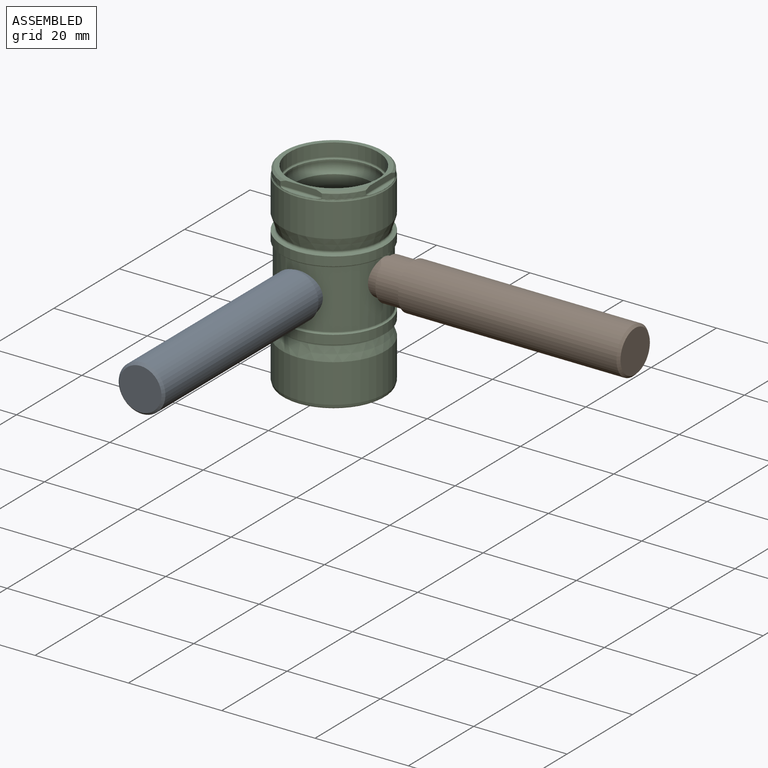
[diagram: assembled view]
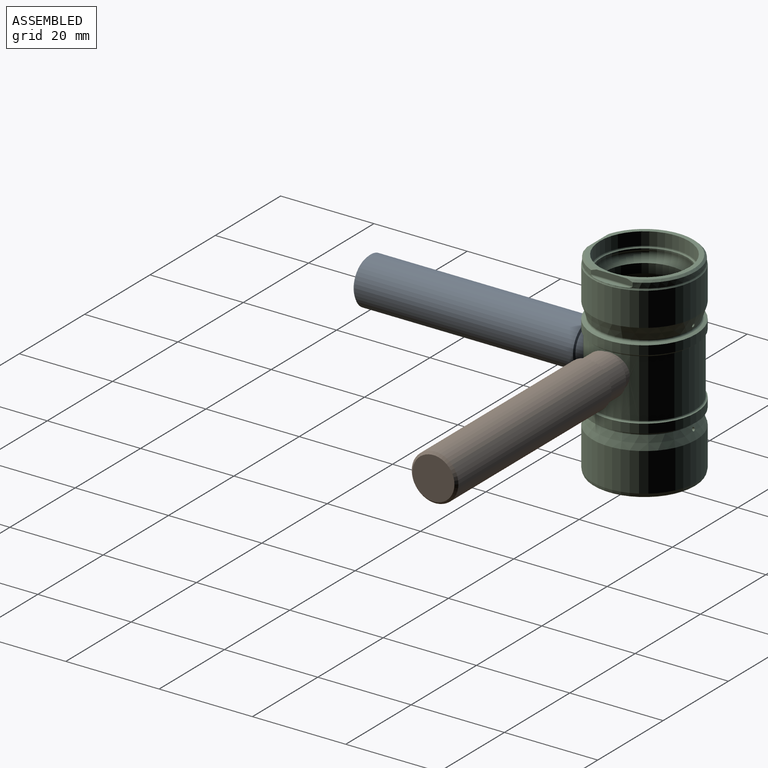
[diagram: assembled view, second angle]
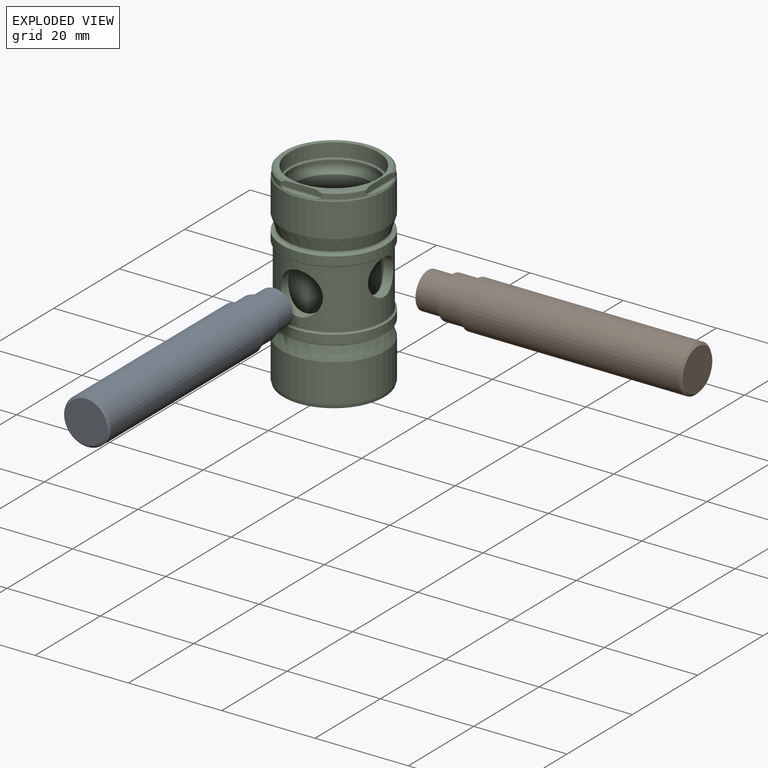
[diagram: exploded view]
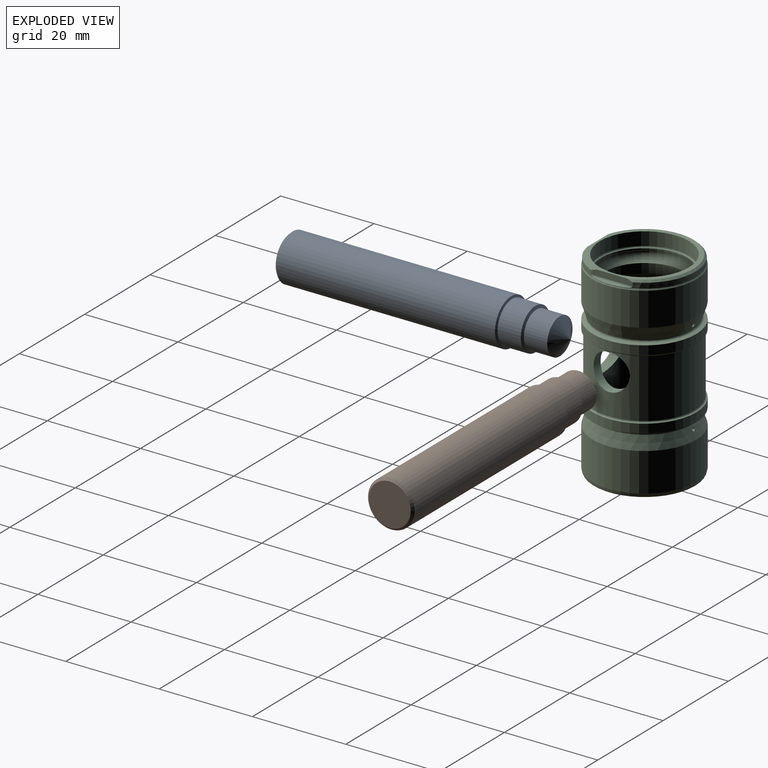
[diagram: exploded view, second angle]
ASSEMBLY  parts=3 mates=2
PART A: 8 faces, bbox 10x60x10 mm
  f0: plane 9x9mm, normal (0,-1,0), area 63.6mm2, adj f7
  f1: cone r=3.88mm half-angle=60deg, axis (0,-1,0), area 54.5mm2, adj f2
  f2: cylinder r=3.88mm len=7.75mm, axis (0,1,0), area 121.7mm2, adj f1,f3
  f3: cone r=4.5mm half-angle=70deg, axis (0,-1,0), area 17.5mm2, adj f2,f4
  f4: cylinder r=4.5mm len=9mm, axis (0,1,0), area 141.4mm2, adj f3,f5
  f5: cone r=5mm half-angle=70deg, axis (0,-1,0), area 15.9mm2, adj f4,f6
  f6: cylinder r=5mm len=46.85mm, axis (0,1,0), area 1471.9mm2, adj f5,f7
  f7: cone r=4.5mm half-angle=45deg, axis (0,1,0), area 21.1mm2, adj f0,f6
PART B: same geometry as A
PART C: 92 faces, bbox 24.1x24.1x42.1 mm
  f0: torus R=7.31mm, axis (0,0,1), area 71.3mm2, adj f1,f4,f8
  f1: cylinder r=9.3mm len=18.6mm, axis (0,0,1), area 8.7mm2, adj f0,f5,f87
  f2: cylinder r=9.3mm len=18.6mm, axis (0,0,1), area 8.7mm2, adj f3,f6,f84
  f3: torus R=7.31mm, axis (0,0,1), area 71.3mm2, adj f2,f7,f9
  f4: torus R=7.31mm, axis (0,0,1), area 71.3mm2, adj f0,f5,f10
  f5: cylinder r=9.3mm len=18.6mm, axis (0,0,1), area 8.7mm2, adj f1,f4,f91
  f6: cylinder r=9.3mm len=18.6mm, axis (0,0,1), area 8.7mm2, adj f2,f7,f88
  f7: torus R=7.31mm, axis (0,0,1), area 71.3mm2, adj f3,f6,f11
  f8: cylinder r=8.48mm len=16.96mm, axis (0,0,1), area 53.1mm2, adj f0,f10,f58
  f9: cylinder r=8.48mm len=16.96mm, axis (0,0,1), area 53.1mm2, adj f3,f11,f62
  f10: cylinder r=8.48mm len=16.96mm, axis (0,0,1), area 53.1mm2, adj f4,f8,f63
  f11: cylinder r=8.48mm len=16.96mm, axis (0,0,1), area 53.1mm2, adj f7,f9,f67
  f12: cone r=11.11mm half-angle=30deg, axis (0,0,-1), area 7.7mm2, adj f13,f19,f42
  f13: cylinder r=11.11mm len=22.22mm, axis (0,0,1), area 251.4mm2, adj f12,f20,f80
  f14: cylinder r=11.11mm len=22.22mm, axis (0,0,1), area 67.3mm2, adj f21,f55,f78
  f15: cylinder r=11.11mm len=22.22mm, axis (0,0,1), area 67.3mm2, adj f22,f51,f83
  f16: cylinder r=11.11mm len=22.22mm, axis (0,0,1), area 288.2mm2, adj f23,f26,f81
  f17: plane 20.52x20.52mm, normal (0,0,1), area 56.6mm2, adj f30,f31,f32,f36,f86,f90
  f18: plane 21.4x21.4mm, normal (0,0,-1), area 73.3mm2, adj f24,f27,f85,f89
  f19: cone r=11.11mm half-angle=30deg, axis (0,0,-1), area 7.7mm2, adj f12,f20,f43
  f20: cylinder r=11.11mm len=22.22mm, axis (0,0,1), area 251.4mm2, adj f13,f19,f74
  f21: cylinder r=11.11mm len=22.22mm, axis (0,0,1), area 67.3mm2, adj f14,f50,f72
  f22: cylinder r=11.11mm len=22.22mm, axis (0,0,1), area 67.3mm2, adj f15,f46,f77
  f23: cylinder r=11.11mm len=22.22mm, axis (0,0,1), area 288.2mm2, adj f16,f29,f75
  f24: cone r=10.7mm half-angle=55deg, axis (0,0,1), area 6.2mm2, adj f18,f25,f27
  f25: torus R=10.71mm, axis (0,0,1), area 6mm2, adj f24,f26,f28
  f26: cone r=10.95mm half-angle=15deg, axis (0,0,1), area 21.4mm2, adj f16,f25,f29
  f27: cone r=10.7mm half-angle=55deg, axis (0,0,1), area 6.2mm2, adj f18,f24,f28
  f28: torus R=10.71mm, axis (0,0,1), area 6mm2, adj f25,f27,f29
  f29: cone r=10.95mm half-angle=15deg, axis (0,0,1), area 21.4mm2, adj f23,f26,f28
  f30: cone r=10.52mm half-angle=45deg, axis (0,0,-1), area 26mm2, adj f17,f32,f36,f45
  f31: cone r=10.52mm half-angle=45deg, axis (0,0,-1), area 5.5mm2, adj f17,f32,f36,f44
  f32: plane 8.96x1.25mm, normal (0,-1,0), area 10.2mm2, adj f17,f30,f31,f33,f44,f45
  f33: cylinder r=0.35mm len=8.92mm, axis (1,0,0), area 4.5mm2, adj f32,f34,f42,f43,f44,f45
  f34: plane 7.15x0.6mm, normal (0,0,1), area 2.9mm2, adj f33,f35,f42,f43
  f35: plane 0.43x0.04mm, normal (0,1,0), area 0mm2, adj f34,f42,f43
  f36: plane 8.96x1.25mm, normal (1,0,0), area 10.2mm2, adj f17,f30,f31,f37,f44,f45
  f37: cylinder r=0.35mm len=8.92mm, axis (0,1,0), area 4.5mm2, adj f36,f38,f42,f44,f45
  f38: plane 7.15x0.6mm, normal (0,0,1), area 2.9mm2, adj f37,f39,f42
  f39: plane 0.43x0.04mm, normal (-1,0,0), area 0mm2, adj f38,f42
  f40: cylinder r=4.5mm len=9mm, axis (0,1,0), area 29.3mm2, adj f41,f48,f53,f60,f65
  f41: cylinder r=4.5mm len=9mm, axis (0,1,0), area 29.3mm2, adj f40,f48,f53,f60,f65
  f42: torus R=11.35mm, axis (0,0,-1), area 6.4mm2, adj f12,f33,f34,f35,f37,f38,f39,f43
  f43: torus R=11.35mm, axis (0,0,-1), area 6.7mm2, adj f19,f33,f34,f35,f42,f45
  f44: cylinder r=10.95mm len=6.17mm, axis (0,0,-1), area 8.8mm2, adj f31,f32,f33,f36,f37,f42
  f45: cylinder r=10.95mm len=21.14mm, axis (0,0,-1), area 45.9mm2, adj f30,f32,f33,f36,f37,f42,f43
  f46: cone r=10.99mm half-angle=72.5deg, axis (0,0,-1), area 4.2mm2, adj f22,f47,f51
  f47: torus R=11.1mm, axis (0,0,-1), area 15.1mm2, adj f46,f48,f52
  f48: cylinder r=10.75mm len=21.5mm, axis (0,0,-1), area 389.6mm2, adj f40,f41,f47,f49,f53
  f49: torus R=11.1mm, axis (0,0,-1), area 15.1mm2, adj f48,f50,f54
  f50: cone r=11.11mm half-angle=72.5deg, axis (0,0,1), area 4.2mm2, adj f21,f49,f55
  f51: cone r=10.99mm half-angle=72.5deg, axis (0,0,-1), area 4.2mm2, adj f15,f46,f52
  f52: torus R=11.1mm, axis (0,0,-1), area 15.1mm2, adj f47,f51,f53
  f53: cylinder r=10.75mm len=21.5mm, axis (0,0,-1), area 341.5mm2, adj f40,f41,f48,f52,f54,f56,f57
  f54: torus R=11.1mm, axis (0,0,-1), area 15.1mm2, adj f49,f53,f55
  f55: cone r=11.11mm half-angle=72.5deg, axis (0,0,1), area 4.2mm2, adj f14,f50,f54
  f56: cylinder r=3.88mm len=7.75mm, axis (1,0,0), area 24.8mm2, adj f53,f57,f60
  f57: cylinder r=3.88mm len=7.75mm, axis (1,0,0), area 24.8mm2, adj f53,f56,f60
  f58: cone r=8.79mm half-angle=15deg, axis (0,0,-1), area 32.4mm2, adj f8,f59,f63
  f59: torus R=8.4mm, axis (0,0,1), area 2.9mm2, adj f58,f60,f64
  f60: cylinder r=8.8mm len=24.26mm, axis (0,0,1), area 588.8mm2, adj f40,f41,f56,f57,f59,f61,f65,f69
  f61: torus R=8.4mm, axis (0,0,1), area 2.9mm2, adj f60,f62,f66
  f62: cone r=8.48mm half-angle=15deg, axis (0,0,1), area 32.4mm2, adj f9,f61,f67
  f63: cone r=8.79mm half-angle=15deg, axis (0,0,-1), area 32.4mm2, adj f10,f58,f64
  f64: torus R=8.4mm, axis (0,0,1), area 2.9mm2, adj f59,f63,f65
  f65: cylinder r=8.8mm len=24.26mm, axis (0,0,1), area 637.2mm2, adj f40,f41,f60,f64,f66,f68,f70
  f66: torus R=8.4mm, axis (0,0,1), area 2.9mm2, adj f61,f65,f67
  f67: cone r=8.48mm half-angle=15deg, axis (0,0,1), area 32.4mm2, adj f11,f62,f66
  f68: cylinder r=0.38mm len=2.05mm, axis (0,0.95,-0.31), area 2.1mm2, adj f65,f69,f74
  f69: cylinder r=0.38mm len=2.05mm, axis (0,0.95,-0.31), area 2.1mm2, adj f60,f68,f80
  f70: cylinder r=0.38mm len=2.05mm, axis (0,-0.95,-0.31), area 2.1mm2, adj f65,f71,f75
  f71: cylinder r=0.38mm len=2.05mm, axis (0,-0.95,-0.31), area 2.1mm2, adj f60,f70,f81
  f72: cone r=10.5mm half-angle=72deg, axis (0,0,-1), area 21.9mm2, adj f21,f73,f78
  f73: torus R=10.62mm, axis (0,0,-1), area 20.3mm2, adj f72,f74,f79
  f74: cone r=11.11mm half-angle=18deg, axis (0,0,1), area 94.2mm2, adj f20,f68,f73,f80
  f75: cone r=10.24mm half-angle=18deg, axis (0,0,-1), area 94.2mm2, adj f23,f70,f76,f81
  f76: torus R=10.62mm, axis (0,0,-1), area 20.3mm2, adj f75,f77,f82
  f77: cone r=11.11mm half-angle=72deg, axis (0,0,1), area 21.9mm2, adj f22,f76,f83
  f78: cone r=10.5mm half-angle=72deg, axis (0,0,-1), area 21.9mm2, adj f14,f72,f79
  f79: torus R=10.62mm, axis (0,0,-1), area 20.3mm2, adj f73,f78,f80
  f80: cone r=11.11mm half-angle=18deg, axis (0,0,1), area 94.2mm2, adj f13,f69,f74,f79
  f81: cone r=10.24mm half-angle=18deg, axis (0,0,-1), area 94.2mm2, adj f16,f71,f75,f82
  f82: torus R=10.62mm, axis (0,0,-1), area 20.3mm2, adj f76,f81,f83
  f83: cone r=11.11mm half-angle=72deg, axis (0,0,1), area 21.9mm2, adj f15,f77,f82
  f84: torus R=9.15mm, axis (0,0,1), area 14.1mm2, adj f2,f85,f88
  f85: cylinder r=9.55mm len=19.1mm, axis (0,0,1), area 83.6mm2, adj f18,f84,f89
  f86: cylinder r=9.55mm len=19.1mm, axis (0,0,1), area 83.6mm2, adj f17,f87,f90
  f87: torus R=9.15mm, axis (0,0,1), area 14.1mm2, adj f1,f86,f91
  f88: torus R=9.15mm, axis (0,0,1), area 14.1mm2, adj f6,f84,f89
  f89: cylinder r=9.55mm len=19.1mm, axis (0,0,1), area 83.6mm2, adj f18,f85,f88
  f90: cylinder r=9.55mm len=19.1mm, axis (0,0,1), area 83.6mm2, adj f17,f86,f91
  f91: torus R=9.15mm, axis (0,0,1), area 14.1mm2, adj f5,f87,f90
PLACE A t=(0,-59.19,21.32)mm
PLACE B rot(axis=(0.58,-0.58,0.58),120deg) t=(64.59,0,23.32)mm
PLACE C t=(0,0,21.03)mm
MATE revolute A.f1 <-> C.f40  axis (0,1,0) through (0,-6.66,21.32)mm
MATE revolute B.f1 <-> C.f56  axis (-1,0,0) through (6.83,0,23.32)mm
